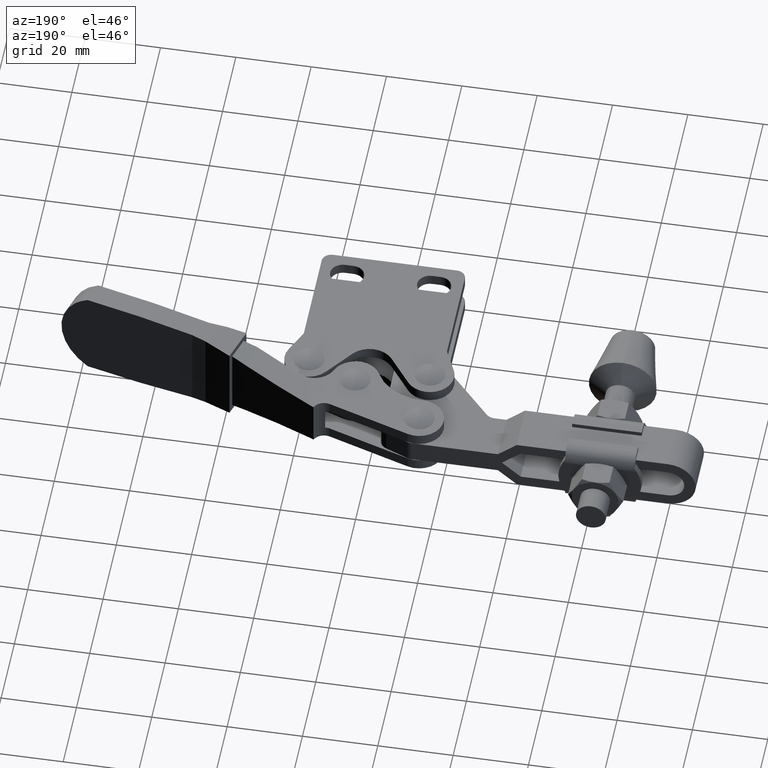
[diagram: clean part render]
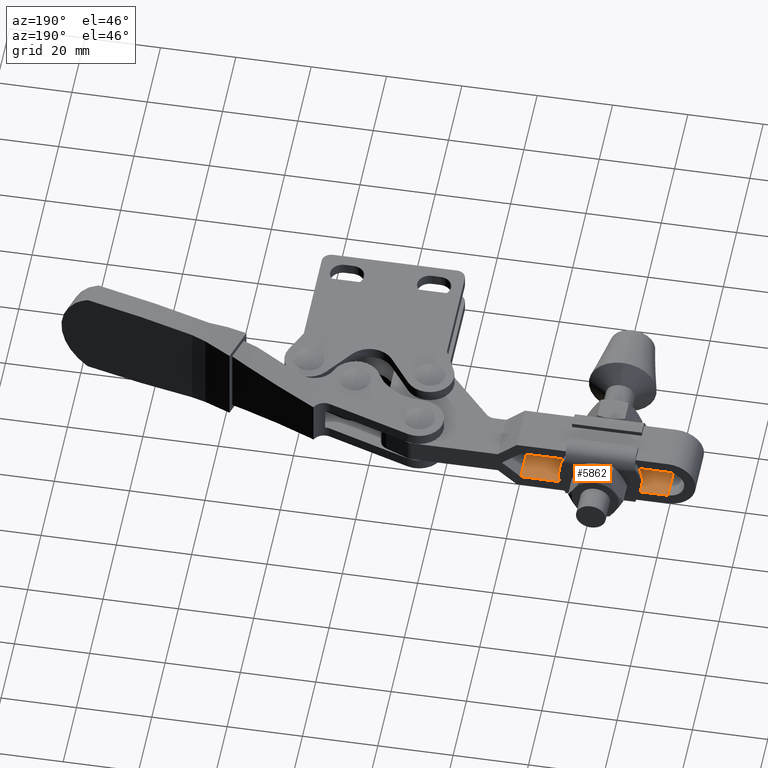
[diagram: same view with one face highlighted and labeled with its STEP entity id]
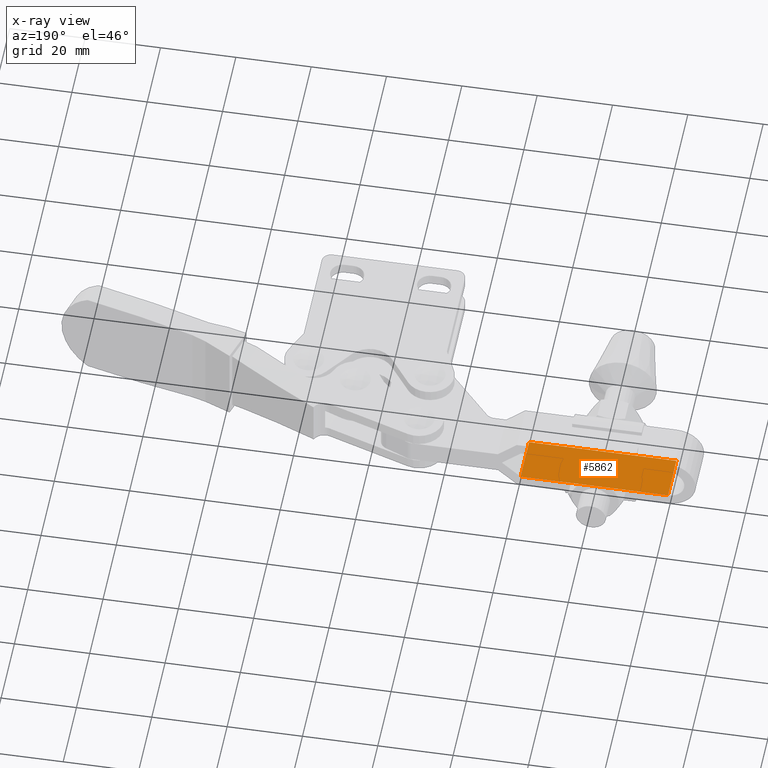
[diagram: x-ray of the same camera — body ghosted, the highlighted face saturated]
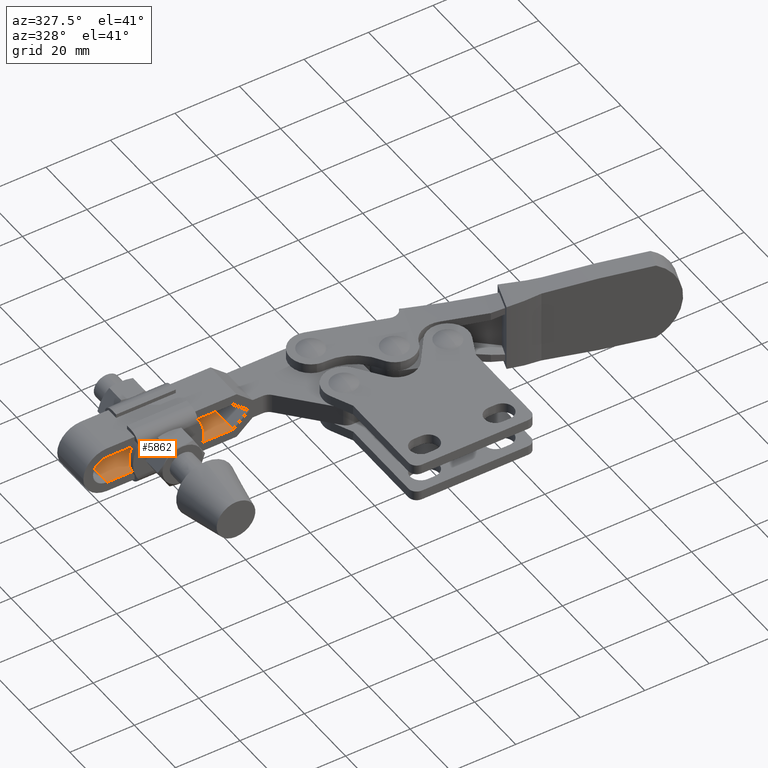
[diagram: same view with one face highlighted and labeled with its STEP entity id]
A machine part, auxiliary view. The second image highlights one B-rep face of the part: STEP entity #5862.
The next image is the same camera in x-ray: the body ghosted, the highlighted face saturated — about 0% of this face is hidden behind the body in this view.
A second angle (auxiliary view) of the same face is appended — the face is thin or edge-on in the first view.
In plain terms, the highlighted planar face has unit normal (0, 0, 1).
Its self-contained STEP definition (entity closure, byte-faithful):
#196 = LINE ( 'NONE', #2653, #8418 ) ;
#739 = CARTESIAN_POINT ( 'NONE',  ( -60.75000000000721900, 34.89999707674870400, -4.343836262991515300 ) ) ;
#1222 = VERTEX_POINT ( 'NONE', #2677 ) ;
#1231 = CARTESIAN_POINT ( 'NONE',  ( -21.64613080606318700, 34.89999707674869700, -4.343836262991515300 ) ) ;
#1381 = PLANE ( 'NONE',  #10606 ) ;
#2305 = DIRECTION ( 'NONE',  ( 1.000000000000000000, 8.673617379884033500E-019, -4.417621069237665000E-029 ) ) ;
#2370 = VECTOR ( 'NONE', #5165, 1000.000000000000000 ) ;
#2653 = CARTESIAN_POINT ( 'NONE',  ( -60.75000000000721900, 47.59999707674866400, -4.343836262991515300 ) ) ;
#2677 = CARTESIAN_POINT ( 'NONE',  ( -60.75000000000721900, 47.59999707674866400, -4.343836262991569400 ) ) ;
#2731 = VECTOR ( 'NONE', #4701, 1000.000000000000000 ) ;
#2797 = LINE ( 'NONE', #8916, #9103 ) ;
#2840 = EDGE_CURVE ( 'NONE', #8856, #5167, #2797, .T. ) ;
#3002 = LINE ( 'NONE', #10451, #2731 ) ;
#3037 = DIRECTION ( 'NONE',  ( 8.673617379884033500E-019, -1.000000000000000000, 1.577721810442023300E-030 ) ) ;
#3440 = CARTESIAN_POINT ( 'NONE',  ( -21.64613080606318700, 47.59999707674866400, -4.343836262991515300 ) ) ;
#3532 = VERTEX_POINT ( 'NONE', #3440 ) ;
#4177 = EDGE_CURVE ( 'NONE', #3532, #1222, #196, .T. ) ;
#4331 = CARTESIAN_POINT ( 'NONE',  ( -21.64613080606318700, 47.59999707674866400, -4.343836262991515300 ) ) ;
#4701 = DIRECTION ( 'NONE',  ( 8.673617379884034500E-019, -1.000000000000000000, 1.577721810442023400E-030 ) ) ;
#4810 = LINE ( 'NONE', #4331, #2370 ) ;
#5129 = DIRECTION ( 'NONE',  ( -1.000000000000000000, -8.673617379884033500E-019, 4.417621069237665000E-029 ) ) ;
#5165 = DIRECTION ( 'NONE',  ( 8.673617379884034500E-019, -1.000000000000000000, 1.577721810442023400E-030 ) ) ;
#5167 = VERTEX_POINT ( 'NONE', #1231 ) ;
#5416 = ORIENTED_EDGE ( 'NONE', *, *, #4177, .T. ) ;
#5784 = ORIENTED_EDGE ( 'NONE', *, *, #10640, .T. ) ;
#5862 = ADVANCED_FACE ( 'NONE', ( #7482 ), #1381, .T. ) ;
#6222 = EDGE_LOOP ( 'NONE', ( #5784, #6572, #6861, #5416 ) ) ;
#6572 = ORIENTED_EDGE ( 'NONE', *, *, #2840, .T. ) ;
#6861 = ORIENTED_EDGE ( 'NONE', *, *, #9627, .F. ) ;
#7131 = CARTESIAN_POINT ( 'NONE',  ( -60.75000000000721900, 47.59999707674866400, -4.343836262991515300 ) ) ;
#7482 = FACE_OUTER_BOUND ( 'NONE', #6222, .T. ) ;
#7944 = DIRECTION ( 'NONE',  ( 1.940508389786498800E-033, 1.577721810442023300E-030, 1.000000000000000000 ) ) ;
#8418 = VECTOR ( 'NONE', #5129, 1000.000000000000000 ) ;
#8856 = VERTEX_POINT ( 'NONE', #739 ) ;
#8916 = CARTESIAN_POINT ( 'NONE',  ( -60.75000000000721900, 34.89999707674869700, -4.343836262991515300 ) ) ;
#9103 = VECTOR ( 'NONE', #2305, 1000.000000000000000 ) ;
#9627 = EDGE_CURVE ( 'NONE', #3532, #5167, #4810, .T. ) ;
#10451 = CARTESIAN_POINT ( 'NONE',  ( -60.75000000000721900, 47.59999707674866400, -4.343836262991515300 ) ) ;
#10606 = AXIS2_PLACEMENT_3D ( 'NONE', #7131, #7944, #3037 ) ;
#10640 = EDGE_CURVE ( 'NONE', #1222, #8856, #3002, .T. ) ;